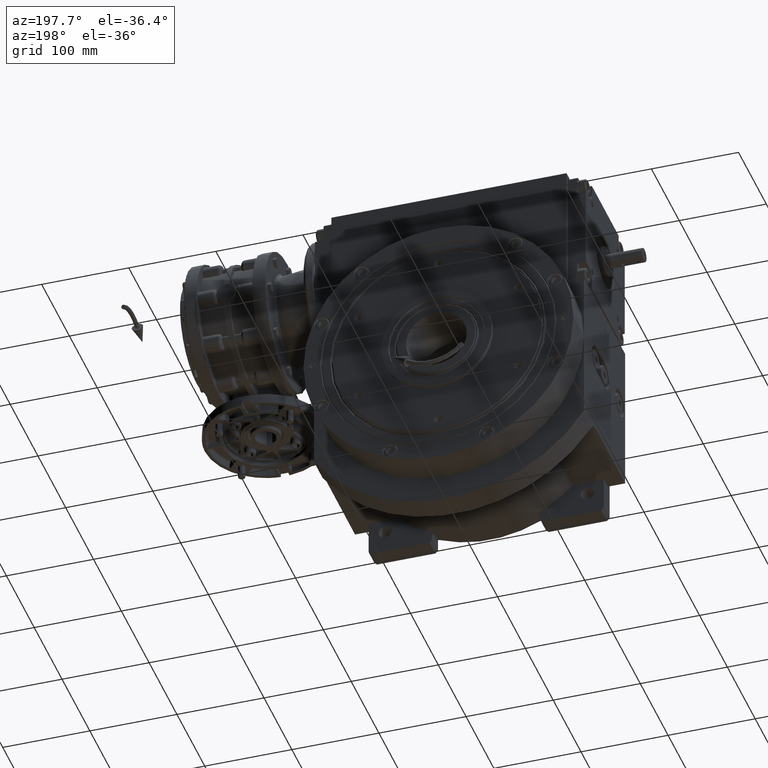
[diagram: clean part render]
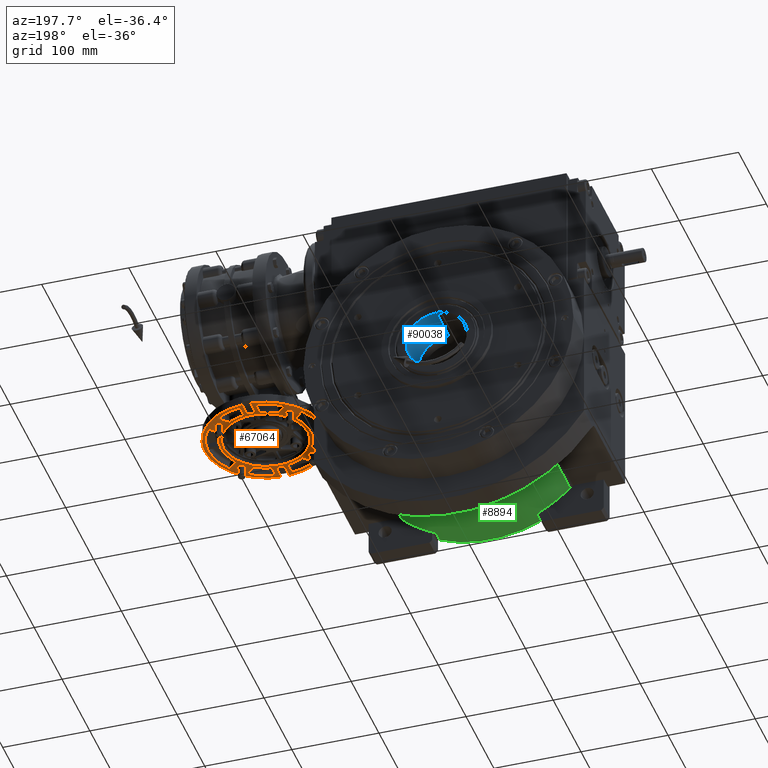
[diagram: same view with three faces highlighted in distinct colors, each labeled with its STEP entity id]
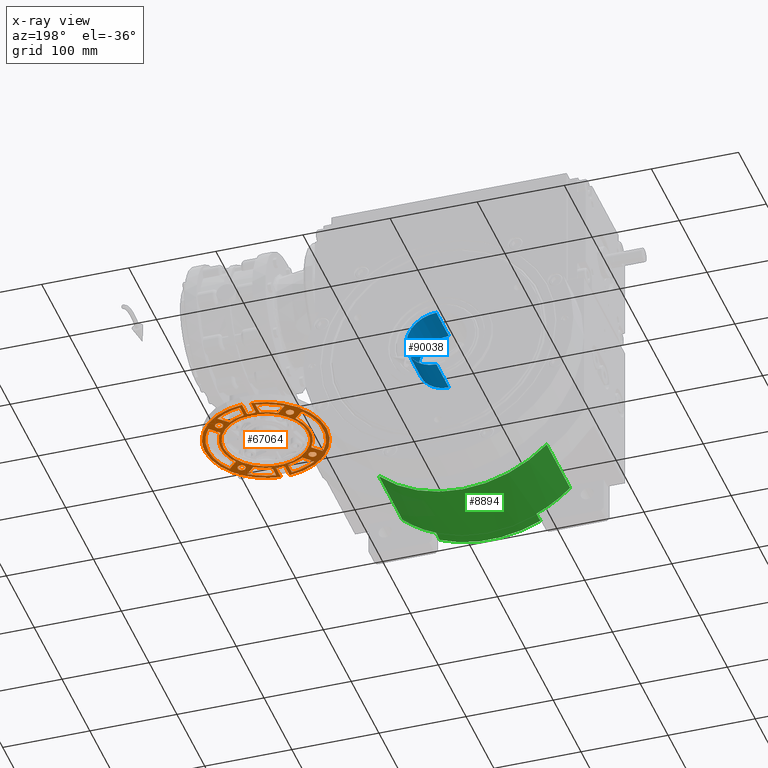
[diagram: x-ray of the same camera — body ghosted, the three highlighted faces saturated]
A machine part, auxiliary view with three faces highlighted in distinct colors.
The next image is the same camera in x-ray (body ghosted, the three faces saturated) — at least one of them is partly hidden behind the body in this view.
Their STEP definitions:

[orange] entity #67064 — the highlighted planar face has unit normal (0, 0, 1).
#191 = VERTEX_POINT ( 'NONE', #105442 ) ;
#914 = DIRECTION ( 'NONE',  ( -1.000000000000000000, -1.052995033665096970E-13, 0.000000000000000000 ) ) ;
#1061 = DIRECTION ( 'NONE',  ( 9.244463733058732095E-32, 2.041326947255042983E-63, -1.000000000000000000 ) ) ;
#1884 = VERTEX_POINT ( 'NONE', #2478 ) ;
#2401 = CARTESIAN_POINT ( 'NONE',  ( -45.15863991822649837, 110.6586399182286158, 100.0000000000000000 ) ) ;
#2478 = CARTESIAN_POINT ( 'NONE',  ( 36.15863991822648416, 110.6586399182286158, 100.0000000000000000 ) ) ;
#2789 = LINE ( 'NONE', #22522, #62763 ) ;
#2954 = VERTEX_POINT ( 'NONE', #74921 ) ;
#3019 = DIRECTION ( 'NONE',  ( -0.07142857142857053643, 0.9974457174120673342, 0.000000000000000000 ) ) ;
#3193 = VERTEX_POINT ( 'NONE', #95854 ) ;
#3231 = CARTESIAN_POINT ( 'NONE',  ( 28.01241613556598864, 113.2152119310790113, 100.0000000000000000 ) ) ;
#3818 = DIRECTION ( 'NONE',  ( 1.000000000000000000, 0.000000000000000000, 0.000000000000000000 ) ) ;
#4028 = CARTESIAN_POINT ( 'NONE',  ( -53.64723104256879793, 108.4444352470602126, 100.0000000000000000 ) ) ;
#5023 = EDGE_CURVE ( 'NONE', #2954, #1884, #45629, .T. ) ;
#5497 = ORIENTED_EDGE ( 'NONE', *, *, #68835, .T. ) ;
#6032 = DIRECTION ( 'NONE',  ( -9.244463733058732095E-32, -2.041326947255042983E-63, 1.000000000000000000 ) ) ;
#6237 = FACE_BOUND ( 'NONE', #110161, .T. ) ;
#6913 = FACE_BOUND ( 'NONE', #25148, .T. ) ;
#7011 = CARTESIAN_POINT ( 'NONE',  ( 15.80658970243451655, 1.772910809099280893, 99.99999999999998579 ) ) ;
#7067 = ORIENTED_EDGE ( 'NONE', *, *, #108440, .T. ) ;
#7251 = ORIENTED_EDGE ( 'NONE', *, *, #59120, .T. ) ;
#7378 = DIRECTION ( 'NONE',  ( 6.505213034912908275E-16, 1.000000000000000000, 0.000000000000000000 ) ) ;
#7449 = CIRCLE ( 'NONE', #83388, 66.00000000000000000 ) ;
#7673 = CARTESIAN_POINT ( 'NONE',  ( 26.22748536798228258, 5.062278186696220317, 100.0000000000000142 ) ) ;
#8328 = CARTESIAN_POINT ( 'NONE',  ( 69.99997257758867875, 67.81172977236685995, 99.99999999999997158 ) ) ;
#8494 = CARTESIAN_POINT ( 'NONE',  ( -3.000000000000002665, 16.50000000000027711, 100.0000000000000000 ) ) ;
#8615 = ORIENTED_EDGE ( 'NONE', *, *, #44771, .T. ) ;
#8653 = CIRCLE ( 'NONE', #99785, 66.00000000000005684 ) ;
#9116 = CIRCLE ( 'NONE', #59018, 4.499999999999997335 ) ;
#10080 = AXIS2_PLACEMENT_3D ( 'NONE', #26995, #68460, #109918 ) ;
#10314 = ORIENTED_EDGE ( 'NONE', *, *, #40353, .T. ) ;
#10344 = LINE ( 'NONE', #91918, #67835 ) ;
#10631 = CARTESIAN_POINT ( 'NONE',  ( 9.000000000000007105, 4.616515846889969410, 100.0000000000000000 ) ) ;
#11880 = AXIS2_PLACEMENT_3D ( 'NONE', #86249, #64497, #76040 ) ;
#12135 = CIRCLE ( 'NONE', #105489, 48.50000000000000000 ) ;
#12266 = VERTEX_POINT ( 'NONE', #30371 ) ;
#12284 = LINE ( 'NONE', #116939, #128303 ) ;
#12692 = AXIS2_PLACEMENT_3D ( 'NONE', #34957, #120556, #24760 ) ;
#12852 = CARTESIAN_POINT ( 'NONE',  ( 5.551115123125782702E-14, 70.00000000000112266, 100.0000000000000000 ) ) ;
#13173 = EDGE_CURVE ( 'NONE', #63279, #29102, #107914, .T. ) ;
#13193 = AXIS2_PLACEMENT_3D ( 'NONE', #99843, #17593, #7378 ) ;
#13369 = VECTOR ( 'NONE', #83052, 1000.000000000000000 ) ;
#14000 = CARTESIAN_POINT ( 'NONE',  ( -3.000000000000002665, 123.5000000000022169, 100.0000000000000000 ) ) ;
#15880 = CARTESIAN_POINT ( 'NONE',  ( -5.000000000000004441, 139.8212002188467977, 100.0000000000000000 ) ) ;
#15995 = VECTOR ( 'NONE', #76540, 1000.000000000000000 ) ;
#16137 = CARTESIAN_POINT ( 'NONE',  ( -28.01241613556604193, 113.2152119310790113, 100.0000000000000000 ) ) ;
#16179 = ORIENTED_EDGE ( 'NONE', *, *, #84592, .T. ) ;
#16226 = CIRCLE ( 'NONE', #66105, 2.000000000000029310 ) ;
#16527 = DIRECTION ( 'NONE',  ( -4.622231866529325541E-32, -1.000000000000000000, 2.051042633084080096E-63 ) ) ;
#16597 = VERTEX_POINT ( 'NONE', #46891 ) ;
#16836 = VERTEX_POINT ( 'NONE', #74600 ) ;
#16889 = DIRECTION ( 'NONE',  ( -0.5439304103993291006, -0.8391303287587795756, 0.000000000000000000 ) ) ;
#16963 = DIRECTION ( 'NONE',  ( -1.000000000000000000, -4.622231866529407648E-32, 9.244463733058732095E-32 ) ) ;
#17203 = CARTESIAN_POINT ( 'NONE',  ( 66.64521380935946127, 48.47794946528271964, 99.99999999999998579 ) ) ;
#17593 = DIRECTION ( 'NONE',  ( 9.244463733058732095E-32, 2.041326947255042983E-63, -1.000000000000000000 ) ) ;
#17831 = EDGE_LOOP ( 'NONE', ( #93092, #100205 ) ) ;
#17884 = CARTESIAN_POINT ( 'NONE',  ( 37.86732600190017450, 11.08604382290448598, 100.0000000000000426 ) ) ;
#18545 = CARTESIAN_POINT ( 'NONE',  ( 69.18188046712309358, 59.10715594143893270, 100.0000000000000000 ) ) ;
#19116 = FACE_BOUND ( 'NONE', #17831, .T. ) ;
#19153 = EDGE_CURVE ( 'NONE', #124308, #84635, #2789, .T. ) ;
#19378 = CARTESIAN_POINT ( 'NONE',  ( -38.44443524705800996, 16.35276895743142589, 100.0000000000000000 ) ) ;
#19815 = ORIENTED_EDGE ( 'NONE', *, *, #43062, .T. ) ;
#19895 = DIRECTION ( 'NONE',  ( 1.210383001907318260E-16, -1.000000000000000000, -1.026341648675384897E-47 ) ) ;
#20436 = FACE_BOUND ( 'NONE', #36637, .T. ) ;
#20800 = CARTESIAN_POINT ( 'NONE',  ( 43.21521193107680148, 98.01241613556821619, 100.0000000000000000 ) ) ;
#21138 = EDGE_CURVE ( 'NONE', #115710, #66622, #61018, .T. ) ;
#21462 = EDGE_CURVE ( 'NONE', #16836, #113274, #100662, .T. ) ;
#22522 = CARTESIAN_POINT ( 'NONE',  ( -5.000000000000004441, 0.1787997811552936578, 100.0000000000000000 ) ) ;
#22671 = ORIENTED_EDGE ( 'NONE', *, *, #47527, .T. ) ;
#23118 = CARTESIAN_POINT ( 'NONE',  ( 5.000000000000004441, 139.8212002188467977, 100.0000000000000000 ) ) ;
#23380 = CARTESIAN_POINT ( 'NONE',  ( 40.65863991822649126, 29.34136008177405586, 100.0000000000000000 ) ) ;
#23439 = CARTESIAN_POINT ( 'NONE',  ( 53.64723104256891162, 31.55556475294255137, 100.0000000000000000 ) ) ;
#23553 = CARTESIAN_POINT ( 'NONE',  ( -40.65863991822649126, 29.34136008177405586, 100.0000000000000000 ) ) ;
#24093 = DIRECTION ( 'NONE',  ( -9.244463733058732095E-32, -2.041326947255042983E-63, 1.000000000000000000 ) ) ;
#24760 = DIRECTION ( 'NONE',  ( -0.8391303287587686954, 0.5439304103993458650, 0.000000000000000000 ) ) ;
#25004 = DIRECTION ( 'NONE',  ( 9.244463733058732095E-32, 2.041326947255042983E-63, -1.000000000000000000 ) ) ;
#25148 = EDGE_LOOP ( 'NONE', ( #85933, #36938 ) ) ;
#25669 = DIRECTION ( 'NONE',  ( 1.000000000000000000, 0.000000000000000000, 0.000000000000000000 ) ) ;
#25685 = LINE ( 'NONE', #128340, #65903 ) ;
#25888 = DIRECTION ( 'NONE',  ( 9.244463733058732095E-32, 2.041326947255042983E-63, -1.000000000000000000 ) ) ;
#26006 = CIRCLE ( 'NONE', #60703, 51.50000000000090949 ) ;
#26499 = VERTEX_POINT ( 'NONE', #34715 ) ;
#26648 = ORIENTED_EDGE ( 'NONE', *, *, #53936, .F. ) ;
#26717 = DIRECTION ( 'NONE',  ( -0.7071067811865425767, -0.7071067811865525687, 6.162975822039117508E-32 ) ) ;
#26840 = EDGE_CURVE ( 'NONE', #40396, #69992, #7449, .T. ) ;
#26995 = CARTESIAN_POINT ( 'NONE',  ( 40.65863991822649126, 110.6586399182286158, 100.0000000000000000 ) ) ;
#27402 = CARTESIAN_POINT ( 'NONE',  ( 13.66914725751986026, 1.312714477467414653, 100.0000000000000000 ) ) ;
#27724 = CIRCLE ( 'NONE', #95132, 51.50000000000076028 ) ;
#27958 = VECTOR ( 'NONE', #129893, 1000.000000000000000 ) ;
#28373 = DIRECTION ( 'NONE',  ( 0.5439304103993309880, 0.8391303287587782433, 0.000000000000000000 ) ) ;
#28488 = EDGE_LOOP ( 'NONE', ( #62612, #91593 ) ) ;
#28637 = FACE_BOUND ( 'NONE', #51281, .T. ) ;
#28725 = CARTESIAN_POINT ( 'NONE',  ( 64.33901799604898031, 42.33640770039536250, 100.0000000000000000 ) ) ;
#28738 = CIRCLE ( 'NONE', #133000, 2.000000000000000000 ) ;
#29018 = DIRECTION ( 'NONE',  ( -9.244463733058732095E-32, -2.041326947255042983E-63, 1.000000000000000000 ) ) ;
#29102 = VERTEX_POINT ( 'NONE', #127580 ) ;
#29297 = DIRECTION ( 'NONE',  ( -1.000000000000000000, -4.622231866529407648E-32, 9.244463733058732095E-32 ) ) ;
#29551 = DIRECTION ( 'NONE',  ( 9.244463733058732095E-32, 2.041326947255042983E-63, -1.000000000000000000 ) ) ;
#30211 = DIRECTION ( 'NONE',  ( -0.7071067811865435759, 0.7071067811865514585, 7.703719777548895243E-32 ) ) ;
#30371 = CARTESIAN_POINT ( 'NONE',  ( -38.44443524705803839, 16.35276895743142589, 100.0000000000000000 ) ) ;
#30908 = VERTEX_POINT ( 'NONE', #20800 ) ;
#32034 = AXIS2_PLACEMENT_3D ( 'NONE', #12852, #127722, #33915 ) ;
#32972 = EDGE_LOOP ( 'NONE', ( #83462, #56575, #115361, #122014 ) ) ;
#32993 = CIRCLE ( 'NONE', #43893, 4.499999999999997335 ) ;
#33425 = CIRCLE ( 'NONE', #72409, 66.00000000000034106 ) ;
#33915 = DIRECTION ( 'NONE',  ( 0.5824914431372367751, -0.8128368339783201835, 0.000000000000000000 ) ) ;
#34094 = ORIENTED_EDGE ( 'NONE', *, *, #21462, .T. ) ;
#34345 = AXIS2_PLACEMENT_3D ( 'NONE', #37226, #107944, #106605 ) ;
#34715 = CARTESIAN_POINT ( 'NONE',  ( 3.000000000000002665, 18.50000000000027711, 100.0000000000000000 ) ) ;
#34827 = ORIENTED_EDGE ( 'NONE', *, *, #39373, .T. ) ;
#34957 = CARTESIAN_POINT ( 'NONE',  ( 5.551115123125782702E-14, 70.00000000000112266, 100.0000000000000000 ) ) ;
#35088 = LINE ( 'NONE', #56832, #15995 ) ;
#35213 = EDGE_CURVE ( 'NONE', #26499, #75407, #71783, .T. ) ;
#35261 = CIRCLE ( 'NONE', #63475, 48.50000000000000000 ) ;
#35590 = DIRECTION ( 'NONE',  ( -1.000000000000000000, 0.000000000000000000, 0.000000000000000000 ) ) ;
#36584 = CIRCLE ( 'NONE', #12692, 51.50000000000026290 ) ;
#36637 = EDGE_LOOP ( 'NONE', ( #7251, #58456, #100254, #97812 ) ) ;
#36762 = CARTESIAN_POINT ( 'NONE',  ( -9.000000000000007105, 120.7074945151132113, 100.0000000000000000 ) ) ;
#36932 = CARTESIAN_POINT ( 'NONE',  ( 65.94094715801604423, 46.40805977646705571, 99.99999999999998579 ) ) ;
#36938 = ORIENTED_EDGE ( 'NONE', *, *, #62253, .T. ) ;
#37226 = CARTESIAN_POINT ( 'NONE',  ( 40.65863991822649126, 29.34136008177405586, 100.0000000000000000 ) ) ;
#37878 = VERTEX_POINT ( 'NONE', #2401 ) ;
#38292 = CARTESIAN_POINT ( 'NONE',  ( -53.64723104256879793, 108.4444352470602126, 100.0000000000000000 ) ) ;
#38404 = VERTEX_POINT ( 'NONE', #131890 ) ;
#38500 = CARTESIAN_POINT ( 'NONE',  ( -3.885780586188047891E-13, 70.00000000000201794, 100.0000000000000000 ) ) ;
#38939 = CARTESIAN_POINT ( 'NONE',  ( 69.99997854670331776, 70.00000000062681238, 100.0000000000000000 ) ) ;
#38951 = EDGE_CURVE ( 'NONE', #84729, #62096, #97422, .T. ) ;
#39174 = LINE ( 'NONE', #80607, #97627 ) ;
#39373 = EDGE_CURVE ( 'NONE', #37878, #89209, #100432, .T. ) ;
#39729 = VERTEX_POINT ( 'NONE', #56985 ) ;
#39959 = CIRCLE ( 'NONE', #68191, 51.50000000000090239 ) ;
#40145 = CIRCLE ( 'NONE', #11880, 66.00000000000117950 ) ;
#40185 = CARTESIAN_POINT ( 'NONE',  ( 0.000000000000000000, 121.5000000000022169, 100.0000000000000000 ) ) ;
#40353 = EDGE_CURVE ( 'NONE', #64811, #52220, #35088, .T. ) ;
#40385 = ORIENTED_EDGE ( 'NONE', *, *, #117986, .T. ) ;
#40396 = VERTEX_POINT ( 'NONE', #98283 ) ;
#40436 = DIRECTION ( 'NONE',  ( 0.7071067811865425767, 0.7071067811865525687, -6.162975822039117508E-32 ) ) ;
#41084 = DIRECTION ( 'NONE',  ( 9.244463733058732095E-32, 2.041326947255042983E-63, -1.000000000000000000 ) ) ;
#41115 = CARTESIAN_POINT ( 'NONE',  ( -28.01241613556604193, 113.2152119310790113, 100.0000000000000000 ) ) ;
#41370 = VERTEX_POINT ( 'NONE', #129596 ) ;
#42117 = AXIS2_PLACEMENT_3D ( 'NONE', #84591, #60372, #61041 ) ;
#42820 = AXIS2_PLACEMENT_3D ( 'NONE', #108002, #6032, #16889 ) ;
#43062 = EDGE_CURVE ( 'NONE', #81699, #120339, #57260, .T. ) ;
#43258 = VERTEX_POINT ( 'NONE', #69279 ) ;
#43836 = CARTESIAN_POINT ( 'NONE',  ( 28.01241613556604193, 26.78478806892380604, 100.0000000000000000 ) ) ;
#43893 = AXIS2_PLACEMENT_3D ( 'NONE', #23553, #64995, #3818 ) ;
#43921 = EDGE_CURVE ( 'NONE', #115162, #117820, #48396, .T. ) ;
#44771 = EDGE_CURVE ( 'NONE', #89209, #37878, #129333, .T. ) ;
#45032 = ORIENTED_EDGE ( 'NONE', *, *, #13173, .T. ) ;
#45136 = CIRCLE ( 'NONE', #34345, 4.499999999999997335 ) ;
#45165 = DIRECTION ( 'NONE',  ( 0.1747572815533934565, -0.9846115439827363147, 0.000000000000000000 ) ) ;
#45629 = CIRCLE ( 'NONE', #62946, 4.499999999999997335 ) ;
#46849 = CIRCLE ( 'NONE', #98945, 2.000000000000000000 ) ;
#46891 = CARTESIAN_POINT ( 'NONE',  ( 66.00000000000000000, 70.00000000000112266, 100.0000000000000000 ) ) ;
#46931 = CARTESIAN_POINT ( 'NONE',  ( -9.000000000000007105, 4.616515846889969410, 100.0000000000000000 ) ) ;
#47527 = EDGE_CURVE ( 'NONE', #113274, #3193, #16226, .T. ) ;
#47709 = FACE_BOUND ( 'NONE', #32972, .T. ) ;
#48396 = LINE ( 'NONE', #130668, #120779 ) ;
#48476 = CARTESIAN_POINT ( 'NONE',  ( 5.000000000000004441, 0.1787997811552981542, 100.0000000000000000 ) ) ;
#48927 = DIRECTION ( 'NONE',  ( -9.244463733058732095E-32, -2.041326947255042983E-63, 1.000000000000000000 ) ) ;
#49135 = CARTESIAN_POINT ( 'NONE',  ( 28.24175784418757118, 5.912661368599073874, 100.0000000000000142 ) ) ;
#49137 = CARTESIAN_POINT ( 'NONE',  ( 5.000000000000004441, 139.8212002188467977, 100.0000000000000000 ) ) ;
#49205 = ORIENTED_EDGE ( 'NONE', *, *, #99956, .F. ) ;
#49669 = AXIS2_PLACEMENT_3D ( 'NONE', #40185, #101373, #29297 ) ;
#49803 = CARTESIAN_POINT ( 'NONE',  ( 39.68785912704193208, 12.29681257716787357, 100.0000000000000284 ) ) ;
#49996 = DIRECTION ( 'NONE',  ( 0.8391303287587690285, -0.5439304103993454209, 0.000000000000000000 ) ) ;
#50695 = VERTEX_POINT ( 'NONE', #16137 ) ;
#50928 = ORIENTED_EDGE ( 'NONE', *, *, #108904, .T. ) ;
#51017 = FACE_BOUND ( 'NONE', #62522, .T. ) ;
#51268 = LINE ( 'NONE', #41115, #103005 ) ;
#51281 = EDGE_LOOP ( 'NONE', ( #8615, #34827 ) ) ;
#51555 = CARTESIAN_POINT ( 'NONE',  ( -9.000000000000007105, 135.3834841531122208, 100.0000000000000000 ) ) ;
#52220 = VERTEX_POINT ( 'NONE', #132740 ) ;
#52404 = ORIENTED_EDGE ( 'NONE', *, *, #82593, .T. ) ;
#52886 = ORIENTED_EDGE ( 'NONE', *, *, #73896, .T. ) ;
#53198 = EDGE_CURVE ( 'NONE', #69047, #56344, #45136, .T. ) ;
#53670 = ORIENTED_EDGE ( 'NONE', *, *, #91166, .T. ) ;
#53709 = VERTEX_POINT ( 'NONE', #62631 ) ;
#53936 = EDGE_CURVE ( 'NONE', #118840, #75407, #97930, .T. ) ;
#54579 = EDGE_CURVE ( 'NONE', #38404, #40396, #83354, .T. ) ;
#55112 = AXIS2_PLACEMENT_3D ( 'NONE', #96146, #96814, #3019 ) ;
#55252 = ORIENTED_EDGE ( 'NONE', *, *, #108437, .T. ) ;
#55346 = CARTESIAN_POINT ( 'NONE',  ( 1.110223024625156540E-13, 70.00000000000112266, 100.0000000000000000 ) ) ;
#55807 = CARTESIAN_POINT ( 'NONE',  ( -36.15863991822648416, 29.34136008177405586, 100.0000000000000000 ) ) ;
#55839 = ORIENTED_EDGE ( 'NONE', *, *, #54579, .T. ) ;
#56150 = DIRECTION ( 'NONE',  ( 6.071532165918735689E-15, -1.000000000000000000, 0.000000000000000000 ) ) ;
#56344 = VERTEX_POINT ( 'NONE', #59473 ) ;
#56389 = AXIS2_PLACEMENT_3D ( 'NONE', #130876, #120647, #81160 ) ;
#56575 = ORIENTED_EDGE ( 'NONE', *, *, #66206, .T. ) ;
#56832 = CARTESIAN_POINT ( 'NONE',  ( 9.000000000000007105, 120.7074945151132113, 100.0000000000000000 ) ) ;
#56985 = CARTESIAN_POINT ( 'NONE',  ( -70.00000000000000000, 70.00000000000112266, 100.0000000000000000 ) ) ;
#57044 = AXIS2_PLACEMENT_3D ( 'NONE', #57149, #25888, #107464 ) ;
#57149 = CARTESIAN_POINT ( 'NONE',  ( -40.65863991822649126, 110.6586399182286158, 100.0000000000000000 ) ) ;
#57260 =( BOUNDED_CURVE ( )  B_SPLINE_CURVE ( 3, ( #73414, #114879, #116223, #23118 ),
 .UNSPECIFIED., .F., .F. ) 
 B_SPLINE_CURVE_WITH_KNOTS ( ( 4, 4 ),
 ( 0.6337260153285120268, 2.133039069713340119 ),
 .UNSPECIFIED. ) 
 CURVE ( )  GEOMETRIC_REPRESENTATION_ITEM ( )  RATIONAL_B_SPLINE_CURVE ( ( 1.000000000000000000, 0.8212819667252724276, 0.8212819667252724276, 1.000000000000000000 ) ) 
 REPRESENTATION_ITEM ( '' )  );
#57881 = DIRECTION ( 'NONE',  ( 9.244463733058732095E-32, 2.041326947255042983E-63, -1.000000000000000000 ) ) ;
#57979 = CARTESIAN_POINT ( 'NONE',  ( 53.64723104256879793, 108.4444352470602126, 100.0000000000000000 ) ) ;
#58279 = CARTESIAN_POINT ( 'NONE',  ( 40.65863991822649126, 110.6586399182286158, 100.0000000000000000 ) ) ;
#58456 = ORIENTED_EDGE ( 'NONE', *, *, #72875, .T. ) ;
#58502 = B_SPLINE_CURVE_WITH_KNOTS ( 'NONE', 3,
 ( #48476, #132095, #89925, #27402, #7011, #59328, #58662, #7673, #49135, #70849, #70194, #17884, #49803, #78388, #89254, #109651, #88575, #110320, #79051, #121854, #100801, #68862, #90584, #91244, #28725, #36932, #17203, #111640, #112302, #18545, #59988, #131424, #8328, #38939 ),
 .UNSPECIFIED., .F., .F.,
 ( 4, 2, 2, 2, 2, 2, 2, 2, 2, 2, 2, 2, 2, 2, 2, 2, 4 ),
 ( 0.000000000000000000, 0.06250000000000005551, 0.1250000000000001110, 0.1875000000000001665, 0.2500000000000002220, 0.3125000000000001665, 0.3750000000000001110, 0.4375000000000001110, 0.5000000000000001110, 0.5625000000000002220, 0.6250000000000004441, 0.6875000000000003331, 0.7500000000000003331, 0.8125000000000002220, 0.8750000000000002220, 0.9375000000000001110, 1.000000000000000000 ),
 .UNSPECIFIED. ) ;
#58662 = CARTESIAN_POINT ( 'NONE',  ( 22.12122478669861891, 3.551257660248213988, 99.99999999999998579 ) ) ;
#59018 = AXIS2_PLACEMENT_3D ( 'NONE', #68153, #120471, #69495 ) ;
#59120 = EDGE_CURVE ( 'NONE', #106906, #43258, #133441, .T. ) ;
#59328 = CARTESIAN_POINT ( 'NONE',  ( 20.03621979310777945, 2.893080284838749794, 99.99999999999998579 ) ) ;
#59473 = CARTESIAN_POINT ( 'NONE',  ( 36.15863991822648416, 29.34136008177405586, 100.0000000000000000 ) ) ;
#59988 = CARTESIAN_POINT ( 'NONE',  ( 69.48813813411928209, 61.27183410163918609, 100.0000000000000000 ) ) ;
#60351 = EDGE_CURVE ( 'NONE', #79143, #93141, #12135, .T. ) ;
#60366 = VECTOR ( 'NONE', #76070, 999.9999999999998863 ) ;
#60372 = DIRECTION ( 'NONE',  ( 9.244463733058732095E-32, 2.041326947255042983E-63, -1.000000000000000000 ) ) ;
#60703 = AXIS2_PLACEMENT_3D ( 'NONE', #87635, #129124, #65221 ) ;
#60818 = ORIENTED_EDGE ( 'NONE', *, *, #38951, .T. ) ;
#61018 = CIRCLE ( 'NONE', #115248, 51.50000000000024158 ) ;
#61041 = DIRECTION ( 'NONE',  ( 0.8128368339783108576, 0.5824914431372498758, 0.000000000000000000 ) ) ;
#62096 = VERTEX_POINT ( 'NONE', #3231 ) ;
#62253 = EDGE_CURVE ( 'NONE', #1884, #2954, #125050, .T. ) ;
#62483 = DIRECTION ( 'NONE',  ( -0.1363636363636333282, -0.9906588508046989539, 0.000000000000000000 ) ) ;
#62522 = EDGE_LOOP ( 'NONE', ( #7067, #45032, #52404, #40385 ) ) ;
#62612 = ORIENTED_EDGE ( 'NONE', *, *, #53198, .T. ) ;
#62631 = CARTESIAN_POINT ( 'NONE',  ( 53.64723104256891162, 31.55556475294255137, 100.0000000000000000 ) ) ;
#62763 = VECTOR ( 'NONE', #96571, 1000.000000000000000 ) ;
#62946 = AXIS2_PLACEMENT_3D ( 'NONE', #58279, #25004, #25669 ) ;
#63279 = VERTEX_POINT ( 'NONE', #89041 ) ;
#63338 = CARTESIAN_POINT ( 'NONE',  ( 5.000000000000004441, 0.1787997811552981542, 100.0000000000000000 ) ) ;
#63475 = AXIS2_PLACEMENT_3D ( 'NONE', #134206, #41084, #914 ) ;
#63601 = CARTESIAN_POINT ( 'NONE',  ( 43.21521193107680148, 41.98758386443460466, 100.0000000000000000 ) ) ;
#64056 = CARTESIAN_POINT ( 'NONE',  ( -3.000000000000002665, 121.5000000000022169, 100.0000000000000000 ) ) ;
#64346 = VERTEX_POINT ( 'NONE', #114315 ) ;
#64404 = ORIENTED_EDGE ( 'NONE', *, *, #79380, .T. ) ;
#64497 = DIRECTION ( 'NONE',  ( 9.244463733058732095E-32, 2.041326947255042983E-63, -1.000000000000000000 ) ) ;
#64666 = AXIS2_PLACEMENT_3D ( 'NONE', #23380, #127377, #35590 ) ;
#64811 = VERTEX_POINT ( 'NONE', #85593 ) ;
#64990 = CARTESIAN_POINT ( 'NONE',  ( -43.21521193107674463, 41.98758386443450519, 100.0000000000000000 ) ) ;
#64995 = DIRECTION ( 'NONE',  ( 9.244463733058732095E-32, 2.041326947255042983E-63, -1.000000000000000000 ) ) ;
#65221 = DIRECTION ( 'NONE',  ( -0.1747572815533949275, 0.9846115439827360927, 0.000000000000000000 ) ) ;
#65303 = EDGE_CURVE ( 'NONE', #130919, #38404, #36584, .T. ) ;
#65570 = ORIENTED_EDGE ( 'NONE', *, *, #19153, .T. ) ;
#65613 = EDGE_LOOP ( 'NONE', ( #5497, #67030, #34094, #22671, #49205, #16179, #68944, #65570, #55252, #134465, #82469, #26648, #53670, #19815 ) ) ;
#65735 = ORIENTED_EDGE ( 'NONE', *, *, #65303, .T. ) ;
#65903 = VECTOR ( 'NONE', #119471, 1000.000000000000000 ) ;
#66105 = AXIS2_PLACEMENT_3D ( 'NONE', #14000, #107127, #56150 ) ;
#66206 = EDGE_CURVE ( 'NONE', #117820, #50695, #26006, .T. ) ;
#66426 = CARTESIAN_POINT ( 'NONE',  ( -45.15863991822649837, 29.34136008177405586, 100.0000000000000000 ) ) ;
#66622 = VERTEX_POINT ( 'NONE', #77946 ) ;
#66918 = DIRECTION ( 'NONE',  ( -0.7071067811865435759, 0.7071067811865514585, 7.703719777548895243E-32 ) ) ;
#67030 = ORIENTED_EDGE ( 'NONE', *, *, #99133, .T. ) ;
#67058 = VECTOR ( 'NONE', #105799, 999.9999999999998863 ) ;
#67064 = ADVANCED_FACE ( 'NONE', ( #6237, #47709, #89155, #51017, #20436, #123744, #28637, #19116, #112203, #6913, #89825, #92476 ), #122421, .F. ) ;
#67175 = DIRECTION ( 'NONE',  ( -1.000000000000000000, -4.205390244792259832E-16, 0.000000000000000000 ) ) ;
#67835 = VECTOR ( 'NONE', #19895, 1000.000000000000000 ) ;
#67962 = ORIENTED_EDGE ( 'NONE', *, *, #72864, .T. ) ;
#68153 = CARTESIAN_POINT ( 'NONE',  ( -40.65863991822649126, 29.34136008177405586, 100.0000000000000000 ) ) ;
#68191 = AXIS2_PLACEMENT_3D ( 'NONE', #55346, #24093, #45165 ) ;
#68460 = DIRECTION ( 'NONE',  ( 9.244463733058732095E-32, 2.041326947255042983E-63, -1.000000000000000000 ) ) ;
#68551 = ORIENTED_EDGE ( 'NONE', *, *, #21138, .T. ) ;
#68835 = EDGE_CURVE ( 'NONE', #120339, #191, #79720, .T. ) ;
#68862 = CARTESIAN_POINT ( 'NONE',  ( 60.39068224682299046, 34.53517107906895234, 100.0000000000000142 ) ) ;
#68923 = CARTESIAN_POINT ( 'NONE',  ( 38.44443524705798154, 123.6472310425712209, 100.0000000000000000 ) ) ;
#68944 = ORIENTED_EDGE ( 'NONE', *, *, #94948, .T. ) ;
#69047 = VERTEX_POINT ( 'NONE', #104812 ) ;
#69279 = CARTESIAN_POINT ( 'NONE',  ( 9.000000000000007105, 19.29250548488937511, 100.0000000000000000 ) ) ;
#69495 = DIRECTION ( 'NONE',  ( -1.000000000000000000, 0.000000000000000000, 0.000000000000000000 ) ) ;
#69992 = VERTEX_POINT ( 'NONE', #38292 ) ;
#70008 = DIRECTION ( 'NONE',  ( -1.000000000000000000, 0.000000000000000000, 0.000000000000000000 ) ) ;
#70194 = CARTESIAN_POINT ( 'NONE',  ( 34.11446937510944366, 8.836392994345549923, 100.0000000000000142 ) ) ;
#70699 = VECTOR ( 'NONE', #40436, 999.9999999999998863 ) ;
#70789 = CARTESIAN_POINT ( 'NONE',  ( 48.50000000000093081, 70.00000000000112266, 100.0000000000000000 ) ) ;
#70849 = CARTESIAN_POINT ( 'NONE',  ( 32.18861816146402788, 7.801274359711350748, 100.0000000000000284 ) ) ;
#71008 = DIRECTION ( 'NONE',  ( -1.000000000000000000, 5.204170427930421283E-15, 0.000000000000000000 ) ) ;
#71783 = CIRCLE ( 'NONE', #13193, 2.000000000000036415 ) ;
#72368 = DIRECTION ( 'NONE',  ( 0.8128368339783108576, 0.5824914431372498758, 0.000000000000000000 ) ) ;
#72409 = AXIS2_PLACEMENT_3D ( 'NONE', #124705, #102342, #72368 ) ;
#72666 = CARTESIAN_POINT ( 'NONE',  ( -5.551115123125782702E-14, 70.00000000000112266, 100.0000000000000000 ) ) ;
#72864 = EDGE_CURVE ( 'NONE', #16597, #53709, #33425, .T. ) ;
#72875 = EDGE_CURVE ( 'NONE', #43258, #130651, #39959, .T. ) ;
#73414 = CARTESIAN_POINT ( 'NONE',  ( 69.99997854670331776, 70.00000000062681238, 100.0000000000000000 ) ) ;
#73896 = EDGE_CURVE ( 'NONE', #53709, #115710, #116536, .T. ) ;
#74600 = CARTESIAN_POINT ( 'NONE',  ( 3.000000000000002665, 121.5000000000022169, 100.0000000000000000 ) ) ;
#74776 = ORIENTED_EDGE ( 'NONE', *, *, #128873, .T. ) ;
#74921 = CARTESIAN_POINT ( 'NONE',  ( 45.15863991822649837, 110.6586399182286158, 100.0000000000000000 ) ) ;
#75043 = VERTEX_POINT ( 'NONE', #15880 ) ;
#75235 = CARTESIAN_POINT ( 'NONE',  ( 5.000000000000004441, 139.8212002188467977, 100.0000000000000000 ) ) ;
#75407 = VERTEX_POINT ( 'NONE', #87773 ) ;
#75908 = EDGE_CURVE ( 'NONE', #69992, #130919, #117522, .T. ) ;
#76024 = VECTOR ( 'NONE', #16963, 1000.000000000000000 ) ;
#76040 = DIRECTION ( 'NONE',  ( 0.1363636363636333559, 0.9906588508046989539, 0.000000000000000000 ) ) ;
#76070 = DIRECTION ( 'NONE',  ( 0.7071067811865425767, -0.7071067811865525687, -6.162975822039117508E-32 ) ) ;
#76439 = VECTOR ( 'NONE', #26717, 999.9999999999998863 ) ;
#76540 = DIRECTION ( 'NONE',  ( 4.622231866529325541E-32, 1.000000000000000000, -2.051042633084080096E-63 ) ) ;
#76866 = CARTESIAN_POINT ( 'NONE',  ( 69.99997854670331776, 70.00000000062681238, 100.0000000000000000 ) ) ;
#76967 = DIRECTION ( 'NONE',  ( -4.622231866529325541E-32, -1.000000000000000000, 2.051042633084080096E-63 ) ) ;
#77425 = EDGE_CURVE ( 'NONE', #130651, #64346, #39174, .T. ) ;
#77488 = EDGE_CURVE ( 'NONE', #41370, #115162, #8653, .T. ) ;
#77946 = CARTESIAN_POINT ( 'NONE',  ( 51.49999999999994316, 70.00000000000112266, 100.0000000000000000 ) ) ;
#78388 = CARTESIAN_POINT ( 'NONE',  ( 43.21375016603678887, 14.88774948138415155, 100.0000000000000142 ) ) ;
#79051 = CARTESIAN_POINT ( 'NONE',  ( 54.13864625542248632, 25.57263514890855305, 100.0000000000000000 ) ) ;
#79143 = VERTEX_POINT ( 'NONE', #70789 ) ;
#79380 = EDGE_CURVE ( 'NONE', #30908, #117382, #12284, .T. ) ;
#79720 = LINE ( 'NONE', #49137, #95536 ) ;
#79954 = DIRECTION ( 'NONE',  ( 9.244463733058732095E-32, 2.041326947255042983E-63, -1.000000000000000000 ) ) ;
#80216 = EDGE_CURVE ( 'NONE', #126631, #81491, #9116, .T. ) ;
#80607 = CARTESIAN_POINT ( 'NONE',  ( 28.01241613556604193, 26.78478806892380604, 100.0000000000000000 ) ) ;
#81160 = DIRECTION ( 'NONE',  ( 0.8391303287587690285, -0.5439304103993454209, 0.000000000000000000 ) ) ;
#81491 = VERTEX_POINT ( 'NONE', #55807 ) ;
#81602 = DIRECTION ( 'NONE',  ( 1.000000000000000000, 1.050133634117093897E-13, 0.000000000000000000 ) ) ;
#81699 = VERTEX_POINT ( 'NONE', #76866 ) ;
#81962 = CARTESIAN_POINT ( 'NONE',  ( 3.000000000000002665, 123.5000000000022169, 100.0000000000000000 ) ) ;
#82469 = ORIENTED_EDGE ( 'NONE', *, *, #35213, .T. ) ;
#82593 = EDGE_CURVE ( 'NONE', #29102, #111485, #10344, .T. ) ;
#82673 = AXIS2_PLACEMENT_3D ( 'NONE', #82825, #48927, #70008 ) ;
#82825 = CARTESIAN_POINT ( 'NONE',  ( 0.000000000000000000, 70.00000000000112266, 100.0000000000000000 ) ) ;
#82901 = ORIENTED_EDGE ( 'NONE', *, *, #75908, .T. ) ;
#83052 = DIRECTION ( 'NONE',  ( -2.420766003814637013E-16, 1.000000000000000000, 2.052683297350769793E-47 ) ) ;
#83354 = LINE ( 'NONE', #64990, #67058 ) ;
#83388 = AXIS2_PLACEMENT_3D ( 'NONE', #107280, #117465, #67175 ) ;
#83462 = ORIENTED_EDGE ( 'NONE', *, *, #43921, .T. ) ;
#84232 = VECTOR ( 'NONE', #66918, 1000.000000000000000 ) ;
#84521 = EDGE_CURVE ( 'NONE', #117382, #16597, #133344, .T. ) ;
#84592 = EDGE_CURVE ( 'NONE', #75043, #39729, #96324, .T. ) ;
#84591 = CARTESIAN_POINT ( 'NONE',  ( 0.000000000000000000, 70.00000000000112266, 100.0000000000000000 ) ) ;
#84635 = VERTEX_POINT ( 'NONE', #116533 ) ;
#84729 = VERTEX_POINT ( 'NONE', #68923 ) ;
#84812 = EDGE_LOOP ( 'NONE', ( #52886, #68551, #100100, #64404, #86907, #67962 ) ) ;
#84989 = VECTOR ( 'NONE', #90449, 1000.000000000000000 ) ;
#85593 = CARTESIAN_POINT ( 'NONE',  ( 9.000000000000007105, 120.7074945151132113, 100.0000000000000000 ) ) ;
#85933 = ORIENTED_EDGE ( 'NONE', *, *, #5023, .T. ) ;
#86249 = CARTESIAN_POINT ( 'NONE',  ( 5.551115123125782702E-14, 70.00000000000112266, 100.0000000000000000 ) ) ;
#86907 = ORIENTED_EDGE ( 'NONE', *, *, #84521, .T. ) ;
#87067 = CARTESIAN_POINT ( 'NONE',  ( 5.000000000000004441, 0.1787997811553076744, 100.0000000000000000 ) ) ;
#87232 = CARTESIAN_POINT ( 'NONE',  ( 38.44443524705803839, 123.6472310425712209, 100.0000000000000000 ) ) ;
#87635 = CARTESIAN_POINT ( 'NONE',  ( 0.000000000000000000, 70.00000000000112266, 100.0000000000000000 ) ) ;
#87773 = CARTESIAN_POINT ( 'NONE',  ( 5.000000000000004441, 16.50000000000027711, 100.0000000000000000 ) ) ;
#88144 = ORIENTED_EDGE ( 'NONE', *, *, #26840, .T. ) ;
#88575 = CARTESIAN_POINT ( 'NONE',  ( 49.74407239866998509, 20.70181564649153216, 100.0000000000000142 ) ) ;
#89041 = CARTESIAN_POINT ( 'NONE',  ( -28.01241613556598864, 26.78478806892375630, 100.0000000000000000 ) ) ;
#89155 = FACE_BOUND ( 'NONE', #128550, .T. ) ;
#89209 = VERTEX_POINT ( 'NONE', #109284 ) ;
#89254 = CARTESIAN_POINT ( 'NONE',  ( 44.91301733694486842, 16.26356387689235561, 100.0000000000000000 ) ) ;
#89825 = FACE_BOUND ( 'NONE', #129926, .T. ) ;
#89925 = CARTESIAN_POINT ( 'NONE',  ( 9.353260928914977512, 0.5932250808530261654, 100.0000000000000142 ) ) ;
#89984 = CARTESIAN_POINT ( 'NONE',  ( -43.21521193107680148, 98.01241613556821619, 100.0000000000000000 ) ) ;
#90449 = DIRECTION ( 'NONE',  ( -1.000000000000000000, -4.622231866529407648E-32, 9.244463733058732095E-32 ) ) ;
#90584 = CARTESIAN_POINT ( 'NONE',  ( 61.46827630550199473, 36.43759898047269985, 100.0000000000000000 ) ) ;
#91108 = EDGE_CURVE ( 'NONE', #56344, #69047, #125703, .T. ) ;
#91166 = EDGE_CURVE ( 'NONE', #118840, #81699, #58502, .T. ) ;
#91229 = EDGE_CURVE ( 'NONE', #64346, #106906, #101558, .T. ) ;
#91244 = CARTESIAN_POINT ( 'NONE',  ( 63.44416164195321528, 40.34149664138094238, 100.0000000000000142 ) ) ;
#91593 = ORIENTED_EDGE ( 'NONE', *, *, #91108, .T. ) ;
#91918 = CARTESIAN_POINT ( 'NONE',  ( -9.000000000000007105, 19.29250548488937511, 100.0000000000000000 ) ) ;
#92476 = FACE_OUTER_BOUND ( 'NONE', #65613, .T. ) ;
#93092 = ORIENTED_EDGE ( 'NONE', *, *, #98352, .T. ) ;
#93141 = VERTEX_POINT ( 'NONE', #114556 ) ;
#93667 = DIRECTION ( 'NONE',  ( 9.244463733058732095E-32, 2.041326947255042983E-63, -1.000000000000000000 ) ) ;
#94948 = EDGE_CURVE ( 'NONE', #39729, #124308, #123921, .T. ) ;
#95132 = AXIS2_PLACEMENT_3D ( 'NONE', #122154, #29018, #28373 ) ;
#95536 = VECTOR ( 'NONE', #16527, 1000.000000000000000 ) ;
#95854 = CARTESIAN_POINT ( 'NONE',  ( -5.000000000000004441, 123.5000000000022169, 100.0000000000000000 ) ) ;
#96146 = CARTESIAN_POINT ( 'NONE',  ( 5.551115123125782702E-14, 70.00000000000112266, 100.0000000000000000 ) ) ;
#96324 = CIRCLE ( 'NONE', #55112, 70.00000000000123634 ) ;
#96536 = DIRECTION ( 'NONE',  ( 0.7071067811865425767, 0.7071067811865525687, -6.162975822039117508E-32 ) ) ;
#96571 = DIRECTION ( 'NONE',  ( 4.622231866529325541E-32, 1.000000000000000000, -2.051042633084080096E-63 ) ) ;
#96641 = EDGE_CURVE ( 'NONE', #93141, #79143, #35261, .T. ) ;
#96814 = DIRECTION ( 'NONE',  ( -9.244463733058732095E-32, -2.041326947255042983E-63, 1.000000000000000000 ) ) ;
#97422 = LINE ( 'NONE', #87232, #76439 ) ;
#97627 = VECTOR ( 'NONE', #133644, 1000.000000000000000 ) ;
#97703 = CARTESIAN_POINT ( 'NONE',  ( -5.000000000000004441, 0.1787997811552936578, 100.0000000000000000 ) ) ;
#97812 = ORIENTED_EDGE ( 'NONE', *, *, #91229, .T. ) ;
#97930 = LINE ( 'NONE', #87067, #27958 ) ;
#98283 = CARTESIAN_POINT ( 'NONE',  ( -53.64723104256879793, 31.55556475294245189, 100.0000000000000000 ) ) ;
#98352 = EDGE_CURVE ( 'NONE', #81491, #126631, #32993, .T. ) ;
#98939 = AXIS2_PLACEMENT_3D ( 'NONE', #103893, #93667, #124266 ) ;
#98945 = AXIS2_PLACEMENT_3D ( 'NONE', #8494, #29551, #71008 ) ;
#99133 = EDGE_CURVE ( 'NONE', #191, #16836, #28738, .T. ) ;
#99785 = AXIS2_PLACEMENT_3D ( 'NONE', #38500, #79954, #121419 ) ;
#99843 = CARTESIAN_POINT ( 'NONE',  ( 3.000000000000002665, 16.50000000000027711, 100.0000000000000000 ) ) ;
#99891 = ORIENTED_EDGE ( 'NONE', *, *, #96641, .T. ) ;
#99897 = CARTESIAN_POINT ( 'NONE',  ( 3.000000000000002665, 18.50000000000027711, 100.0000000000000000 ) ) ;
#99956 = EDGE_CURVE ( 'NONE', #75043, #3193, #25685, .T. ) ;
#100100 = ORIENTED_EDGE ( 'NONE', *, *, #115891, .T. ) ;
#100205 = ORIENTED_EDGE ( 'NONE', *, *, #80216, .T. ) ;
#100254 = ORIENTED_EDGE ( 'NONE', *, *, #77425, .T. ) ;
#100432 = CIRCLE ( 'NONE', #57044, 4.499999999999997335 ) ;
#100662 = LINE ( 'NONE', #102660, #84989 ) ;
#100801 = CARTESIAN_POINT ( 'NONE',  ( 58.05817832069899964, 30.83328293701306677, 100.0000000000000000 ) ) ;
#101373 = DIRECTION ( 'NONE',  ( -9.244463733058732095E-32, -6.504684023928853076E-63, -1.000000000000000000 ) ) ;
#101558 = CIRCLE ( 'NONE', #32034, 66.00000000000093792 ) ;
#102342 = DIRECTION ( 'NONE',  ( 9.244463733058732095E-32, 2.041326947255042983E-63, -1.000000000000000000 ) ) ;
#102660 = CARTESIAN_POINT ( 'NONE',  ( 3.000000000000002665, 121.5000000000022169, 100.0000000000000000 ) ) ;
#103005 = VECTOR ( 'NONE', #30211, 1000.000000000000000 ) ;
#103893 = CARTESIAN_POINT ( 'NONE',  ( -40.65863991822649126, 110.6586399182286158, 100.0000000000000000 ) ) ;
#104812 = CARTESIAN_POINT ( 'NONE',  ( 45.15863991822649837, 29.34136008177405586, 100.0000000000000000 ) ) ;
#105442 = CARTESIAN_POINT ( 'NONE',  ( 5.000000000000004441, 123.5000000000022169, 100.0000000000000000 ) ) ;
#105489 = AXIS2_PLACEMENT_3D ( 'NONE', #132647, #57881, #81602 ) ;
#105799 = DIRECTION ( 'NONE',  ( -0.7071067811865425767, -0.7071067811865525687, 6.162975822039117508E-32 ) ) ;
#106605 = DIRECTION ( 'NONE',  ( 1.000000000000000000, 0.000000000000000000, 0.000000000000000000 ) ) ;
#106906 = VERTEX_POINT ( 'NONE', #10631 ) ;
#107127 = DIRECTION ( 'NONE',  ( 9.244463733058732095E-32, 2.041326947255042983E-63, -1.000000000000000000 ) ) ;
#107280 = CARTESIAN_POINT ( 'NONE',  ( -5.551115123125782702E-14, 70.00000000000112266, 100.0000000000000000 ) ) ;
#107464 = DIRECTION ( 'NONE',  ( -1.000000000000000000, 0.000000000000000000, 0.000000000000000000 ) ) ;
#107914 = CIRCLE ( 'NONE', #42820, 51.50000000000074607 ) ;
#107944 = DIRECTION ( 'NONE',  ( 9.244463733058732095E-32, 2.041326947255042983E-63, -1.000000000000000000 ) ) ;
#108002 = CARTESIAN_POINT ( 'NONE',  ( 1.665334536937734811E-13, 70.00000000000112266, 100.0000000000000000 ) ) ;
#108248 = CARTESIAN_POINT ( 'NONE',  ( -3.000000000000002665, 18.50000000000027711, 100.0000000000000000 ) ) ;
#108399 = EDGE_CURVE ( 'NONE', #50695, #41370, #51268, .T. ) ;
#108437 = EDGE_CURVE ( 'NONE', #84635, #114720, #46849, .T. ) ;
#108440 = EDGE_CURVE ( 'NONE', #12266, #63279, #112470, .T. ) ;
#108904 = EDGE_CURVE ( 'NONE', #52220, #84729, #40145, .T. ) ;
#109284 = CARTESIAN_POINT ( 'NONE',  ( -36.15863991822648416, 110.6586399182286158, 100.0000000000000000 ) ) ;
#109411 = LINE ( 'NONE', #99897, #76024 ) ;
#109651 = CARTESIAN_POINT ( 'NONE',  ( 48.18098352051993771, 19.17302539954409113, 100.0000000000000284 ) ) ;
#109918 = DIRECTION ( 'NONE',  ( -1.000000000000000000, 0.000000000000000000, 0.000000000000000000 ) ) ;
#110161 = EDGE_LOOP ( 'NONE', ( #60818, #74776, #10314, #50928 ) ) ;
#110320 = CARTESIAN_POINT ( 'NONE',  ( 52.72546360842383706, 23.90429466406608228, 100.0000000000000000 ) ) ;
#111485 = VERTEX_POINT ( 'NONE', #46931 ) ;
#111640 = CARTESIAN_POINT ( 'NONE',  ( 67.85913052429270920, 52.68162887658392179, 100.0000000000000142 ) ) ;
#112203 = FACE_BOUND ( 'NONE', #28488, .T. ) ;
#112302 = CARTESIAN_POINT ( 'NONE',  ( 68.36662782131031690, 54.80833476050068498, 100.0000000000000000 ) ) ;
#112470 = LINE ( 'NONE', #19378, #70699 ) ;
#113229 = AXIS2_PLACEMENT_3D ( 'NONE', #72666, #114142, #62483 ) ;
#113274 = VERTEX_POINT ( 'NONE', #64056 ) ;
#114142 = DIRECTION ( 'NONE',  ( 9.244463733058732095E-32, 2.041326947255042983E-63, -1.000000000000000000 ) ) ;
#114315 = CARTESIAN_POINT ( 'NONE',  ( 38.44443524705809523, 16.35276895743147918, 100.0000000000000000 ) ) ;
#114556 = CARTESIAN_POINT ( 'NONE',  ( -48.50000000000090239, 70.00000000000112266, 100.0000000000000000 ) ) ;
#114720 = VERTEX_POINT ( 'NONE', #108248 ) ;
#114879 = CARTESIAN_POINT ( 'NONE',  ( 70.00005198902529457, 108.7173835096302668, 100.0000000000000000 ) ) ;
#114972 = CIRCLE ( 'NONE', #56389, 51.50000000000024158 ) ;
#115162 = VERTEX_POINT ( 'NONE', #51555 ) ;
#115248 = AXIS2_PLACEMENT_3D ( 'NONE', #125361, #122704, #49996 ) ;
#115361 = ORIENTED_EDGE ( 'NONE', *, *, #108399, .T. ) ;
#115710 = VERTEX_POINT ( 'NONE', #63601 ) ;
#115891 = EDGE_CURVE ( 'NONE', #66622, #30908, #114972, .T. ) ;
#116223 = CARTESIAN_POINT ( 'NONE',  ( 43.61854500621584663, 137.0556818639284415, 100.0000000000000000 ) ) ;
#116533 = CARTESIAN_POINT ( 'NONE',  ( -5.000000000000004441, 16.50000000000027711, 100.0000000000000000 ) ) ;
#116536 = LINE ( 'NONE', #23439, #84232 ) ;
#116939 = CARTESIAN_POINT ( 'NONE',  ( 43.21521193107674463, 98.01241613556821619, 100.0000000000000000 ) ) ;
#117382 = VERTEX_POINT ( 'NONE', #57979 ) ;
#117465 = DIRECTION ( 'NONE',  ( 9.244463733058732095E-32, 2.041326947255042983E-63, -1.000000000000000000 ) ) ;
#117522 = LINE ( 'NONE', #4028, #60366 ) ;
#117820 = VERTEX_POINT ( 'NONE', #36762 ) ;
#117986 = EDGE_CURVE ( 'NONE', #111485, #12266, #130646, .T. ) ;
#118223 = ORIENTED_EDGE ( 'NONE', *, *, #60351, .T. ) ;
#118840 = VERTEX_POINT ( 'NONE', #63338 ) ;
#119471 = DIRECTION ( 'NONE',  ( -4.622231866529325541E-32, -1.000000000000000000, 2.051042633084080096E-63 ) ) ;
#120339 = VERTEX_POINT ( 'NONE', #75235 ) ;
#120471 = DIRECTION ( 'NONE',  ( 9.244463733058732095E-32, 2.041326947255042983E-63, -1.000000000000000000 ) ) ;
#120556 = DIRECTION ( 'NONE',  ( -9.244463733058732095E-32, -2.041326947255042983E-63, 1.000000000000000000 ) ) ;
#120647 = DIRECTION ( 'NONE',  ( -9.244463733058732095E-32, -2.041326947255042983E-63, 1.000000000000000000 ) ) ;
#120779 = VECTOR ( 'NONE', #76967, 1000.000000000000000 ) ;
#121419 = DIRECTION ( 'NONE',  ( -0.5824914431372385515, 0.8128368339783188512, 0.000000000000000000 ) ) ;
#121854 = CARTESIAN_POINT ( 'NONE',  ( 56.80730200407591468, 29.04003121905907747, 99.99999999999998579 ) ) ;
#122014 = ORIENTED_EDGE ( 'NONE', *, *, #77488, .T. ) ;
#122154 = CARTESIAN_POINT ( 'NONE',  ( -5.551115123125782702E-14, 70.00000000000112266, 100.0000000000000000 ) ) ;
#122421 = PLANE ( 'NONE',  #49669 ) ;
#122704 = DIRECTION ( 'NONE',  ( -9.244463733058732095E-32, -2.041326947255042983E-63, 1.000000000000000000 ) ) ;
#123203 = CARTESIAN_POINT ( 'NONE',  ( 9.000000000000007105, 4.616515846889969410, 100.0000000000000000 ) ) ;
#123450 = DIRECTION ( 'NONE',  ( 1.000000000000000000, 0.000000000000000000, 0.000000000000000000 ) ) ;
#123744 = FACE_BOUND ( 'NONE', #84812, .T. ) ;
#123921 = CIRCLE ( 'NONE', #82673, 70.00000000000000000 ) ;
#124266 = DIRECTION ( 'NONE',  ( 1.000000000000000000, 0.000000000000000000, 0.000000000000000000 ) ) ;
#124308 = VERTEX_POINT ( 'NONE', #97703 ) ;
#124705 = CARTESIAN_POINT ( 'NONE',  ( 0.000000000000000000, 70.00000000000112266, 100.0000000000000000 ) ) ;
#125050 = CIRCLE ( 'NONE', #10080, 4.499999999999997335 ) ;
#125361 = CARTESIAN_POINT ( 'NONE',  ( -5.551115123125782702E-14, 70.00000000000112266, 100.0000000000000000 ) ) ;
#125703 = CIRCLE ( 'NONE', #64666, 4.499999999999997335 ) ;
#126631 = VERTEX_POINT ( 'NONE', #66426 ) ;
#127377 = DIRECTION ( 'NONE',  ( 9.244463733058732095E-32, 2.041326947255042983E-63, -1.000000000000000000 ) ) ;
#127580 = CARTESIAN_POINT ( 'NONE',  ( -9.000000000000007105, 19.29250548488937511, 100.0000000000000000 ) ) ;
#127722 = DIRECTION ( 'NONE',  ( 9.244463733058732095E-32, 2.041326947255042983E-63, -1.000000000000000000 ) ) ;
#128303 = VECTOR ( 'NONE', #96536, 999.9999999999998863 ) ;
#128340 = CARTESIAN_POINT ( 'NONE',  ( -5.000000000000004441, 139.8212002188467977, 100.0000000000000000 ) ) ;
#128550 = EDGE_LOOP ( 'NONE', ( #88144, #82901, #65735, #55839 ) ) ;
#128873 = EDGE_CURVE ( 'NONE', #62096, #64811, #27724, .T. ) ;
#129124 = DIRECTION ( 'NONE',  ( -9.244463733058732095E-32, -2.041326947255042983E-63, 1.000000000000000000 ) ) ;
#129333 = CIRCLE ( 'NONE', #98939, 4.499999999999997335 ) ;
#129596 = CARTESIAN_POINT ( 'NONE',  ( -38.44443524705809523, 123.6472310425710077, 100.0000000000000000 ) ) ;
#129893 = DIRECTION ( 'NONE',  ( 4.622231866529325541E-32, 1.000000000000000000, -2.051042633084080096E-63 ) ) ;
#129926 = EDGE_LOOP ( 'NONE', ( #99891, #118223 ) ) ;
#130646 = CIRCLE ( 'NONE', #113229, 66.00000000000119371 ) ;
#130651 = VERTEX_POINT ( 'NONE', #43836 ) ;
#130668 = CARTESIAN_POINT ( 'NONE',  ( -9.000000000000007105, 135.3834841531122208, 100.0000000000000000 ) ) ;
#130876 = CARTESIAN_POINT ( 'NONE',  ( -5.551115123125782702E-14, 70.00000000000112266, 100.0000000000000000 ) ) ;
#130919 = VERTEX_POINT ( 'NONE', #89984 ) ;
#131424 = CARTESIAN_POINT ( 'NONE',  ( 69.89760759190833994, 65.62844254692625157, 100.0000000000000142 ) ) ;
#131890 = CARTESIAN_POINT ( 'NONE',  ( -43.21521193107680148, 41.98758386443450519, 100.0000000000000000 ) ) ;
#132095 = CARTESIAN_POINT ( 'NONE',  ( 7.182317434838696002, 0.3350780379240093088, 100.0000000000000284 ) ) ;
#132647 = CARTESIAN_POINT ( 'NONE',  ( 0.000000000000000000, 69.99999999999600675, 100.0000000000000000 ) ) ;
#132740 = CARTESIAN_POINT ( 'NONE',  ( 9.000000000000007105, 135.3834841531122208, 100.0000000000000000 ) ) ;
#132920 = EDGE_CURVE ( 'NONE', #26499, #114720, #109411, .T. ) ;
#133000 = AXIS2_PLACEMENT_3D ( 'NONE', #81962, #1061, #123450 ) ;
#133344 = CIRCLE ( 'NONE', #42117, 66.00000000000034106 ) ;
#133441 = LINE ( 'NONE', #123203, #13369 ) ;
#133644 = DIRECTION ( 'NONE',  ( 0.7071067811865435759, -0.7071067811865514585, -7.703719777548895243E-32 ) ) ;
#134206 = CARTESIAN_POINT ( 'NONE',  ( 0.000000000000000000, 70.00000000000621014, 100.0000000000000000 ) ) ;
#134465 = ORIENTED_EDGE ( 'NONE', *, *, #132920, .F. ) ;

[blue] entity #90038 — the highlighted cylindrical surface (edge-blend (fillet) strip) has radius 35 mm, axis along (0, -1, 0).
#2111 = CARTESIAN_POINT ( 'NONE',  ( 0.000000000000000000, 3.520743267239335012E-15, 11.99999999999999645 ) ) ;
#3767 = CARTESIAN_POINT ( 'NONE',  ( -35.00000000000000000, 3.520743267239335012E-15, 11.99999999999999645 ) ) ;
#5227 = CARTESIAN_POINT ( 'NONE',  ( 0.000000000000000000, 0.000000000000000000, 11.99999999999999645 ) ) ;
#5478 = EDGE_CURVE ( 'NONE', #13326, #106180, #86705, .T. ) ;
#7098 = LINE ( 'NONE', #59421, #82915 ) ;
#13326 = VERTEX_POINT ( 'NONE', #133123 ) ;
#17302 = DIRECTION ( 'NONE',  ( 0.000000000000000000, 0.000000000000000000, -1.000000000000000000 ) ) ;
#22595 = EDGE_CURVE ( 'NONE', #94406, #106180, #41824, .T. ) ;
#24560 = EDGE_CURVE ( 'NONE', #107551, #94406, #7098, .T. ) ;
#24563 = ORIENTED_EDGE ( 'NONE', *, *, #35426, .F. ) ;
#28128 = DIRECTION ( 'NONE',  ( 0.000000000000000000, 0.000000000000000000, -1.000000000000000000 ) ) ;
#29336 = CARTESIAN_POINT ( 'NONE',  ( -35.00000000000000000, 1.173581089079778600E-15, -33.00000000000000000 ) ) ;
#32833 = CARTESIAN_POINT ( 'NONE',  ( 35.00000000000000000, 2.602335688085024756E-15, -33.00000000000000000 ) ) ;
#35426 = EDGE_CURVE ( 'NONE', #107551, #13326, #128192, .T. ) ;
#35710 = DIRECTION ( 'NONE',  ( 0.000000000000000000, 0.000000000000000000, -1.000000000000000000 ) ) ;
#38753 = CARTESIAN_POINT ( 'NONE',  ( 35.00000000000000000, 2.602335688085024756E-15, 11.99999999999999645 ) ) ;
#38984 = DIRECTION ( 'NONE',  ( 1.000000000000000000, 0.000000000000000000, 0.000000000000000000 ) ) ;
#41824 = CIRCLE ( 'NONE', #132971, 35.00000000000000000 ) ;
#43603 = DIRECTION ( 'NONE',  ( -1.000000000000000000, 0.000000000000000000, 0.000000000000000000 ) ) ;
#47852 = CARTESIAN_POINT ( 'NONE',  ( 0.000000000000000000, 0.000000000000000000, -33.00000000000000000 ) ) ;
#53097 = CYLINDRICAL_SURFACE ( 'NONE', #99514, 35.00000000000000000 ) ;
#53771 = FACE_OUTER_BOUND ( 'NONE', #131323, .T. ) ;
#59421 = CARTESIAN_POINT ( 'NONE',  ( 35.00000000000000000, 7.807007064255067958E-15, 11.99999999999999645 ) ) ;
#65317 = DIRECTION ( 'NONE',  ( 0.000000000000000000, 0.000000000000000000, 1.000000000000000000 ) ) ;
#73257 = ORIENTED_EDGE ( 'NONE', *, *, #24560, .T. ) ;
#82915 = VECTOR ( 'NONE', #17302, 1000.000000000000000 ) ;
#86705 = LINE ( 'NONE', #3767, #113010 ) ;
#86941 = AXIS2_PLACEMENT_3D ( 'NONE', #5227, #122085, #109874 ) ;
#90038 = ADVANCED_FACE ( 'NONE', ( #53771 ), #53097, .F. ) ;
#94406 = VERTEX_POINT ( 'NONE', #32833 ) ;
#99514 = AXIS2_PLACEMENT_3D ( 'NONE', #2111, #65317, #43603 ) ;
#106180 = VERTEX_POINT ( 'NONE', #29336 ) ;
#107551 = VERTEX_POINT ( 'NONE', #38753 ) ;
#109874 = DIRECTION ( 'NONE',  ( 1.000000000000000000, 0.000000000000000000, 0.000000000000000000 ) ) ;
#113010 = VECTOR ( 'NONE', #35710, 1000.000000000000000 ) ;
#119783 = ORIENTED_EDGE ( 'NONE', *, *, #22595, .T. ) ;
#122085 = DIRECTION ( 'NONE',  ( 0.000000000000000000, 0.000000000000000000, -1.000000000000000000 ) ) ;
#125808 = ORIENTED_EDGE ( 'NONE', *, *, #5478, .F. ) ;
#128192 = CIRCLE ( 'NONE', #86941, 35.00000000000000000 ) ;
#131323 = EDGE_LOOP ( 'NONE', ( #73257, #119783, #125808, #24563 ) ) ;
#132971 = AXIS2_PLACEMENT_3D ( 'NONE', #47852, #28128, #38984 ) ;
#133123 = CARTESIAN_POINT ( 'NONE',  ( -35.00000000000000000, 1.173581089079778600E-15, 11.99999999999999645 ) ) ;

[green] entity #8894 — the highlighted cylindrical surface (partial cylindrical patch) has radius 138 mm, axis along (0, 1, 0).
#439 = ORIENTED_EDGE ( 'NONE', *, *, #96023, .F. ) ;
#635 = DIRECTION ( 'NONE',  ( -0.6978784504689377055, -1.201735973212917754E-14, -0.7162162162162165613 ) ) ;
#2200 = DIRECTION ( 'NONE',  ( 0.000000000000000000, 1.000000000000000000, 0.000000000000000000 ) ) ;
#2545 = DIRECTION ( 'NONE',  ( 0.000000000000000000, -1.000000000000000000, 0.000000000000000000 ) ) ;
#3554 = EDGE_CURVE ( 'NONE', #19259, #32356, #123600, .T. ) ;
#5920 = EDGE_CURVE ( 'NONE', #121463, #19259, #113115, .T. ) ;
#7638 = CARTESIAN_POINT ( 'NONE',  ( 96.30722616471339848, -59.00000000000000000, -98.83783783783789545 ) ) ;
#7958 = DIRECTION ( 'NONE',  ( -0.4184397163120575636, 0.000000000000000000, -0.9082445726855100654 ) ) ;
#8894 = ADVANCED_FACE ( 'NONE', ( #114369 ), #53195, .T. ) ;
#10108 = EDGE_CURVE ( 'NONE', #125081, #18212, #28840, .T. ) ;
#15412 = AXIS2_PLACEMENT_3D ( 'NONE', #88536, #69499, #17841 ) ;
#15462 = CIRCLE ( 'NONE', #28475, 138.0000000000000000 ) ;
#16330 = CARTESIAN_POINT ( 'NONE',  ( -96.30722616471359743, -59.00000000000000000, -98.83783783783779597 ) ) ;
#16422 = LINE ( 'NONE', #58563, #18519 ) ;
#17841 = DIRECTION ( 'NONE',  ( -0.4184397163120575636, 0.000000000000000000, -0.9082445726855100654 ) ) ;
#18212 = VERTEX_POINT ( 'NONE', #81326 ) ;
#18519 = VECTOR ( 'NONE', #110215, 1000.000000000000000 ) ;
#19259 = VERTEX_POINT ( 'NONE', #16330 ) ;
#20113 = CARTESIAN_POINT ( 'NONE',  ( -57.74468085106390447, -73.00000000000000000, -125.3377510306004012 ) ) ;
#22945 = CARTESIAN_POINT ( 'NONE',  ( -57.74468085106390447, -59.00000000000000000, -125.3377510306004012 ) ) ;
#23472 = VERTEX_POINT ( 'NONE', #70421 ) ;
#23640 = VERTEX_POINT ( 'NONE', #20113 ) ;
#26367 = DIRECTION ( 'NONE',  ( 0.6978784504689377055, 0.000000000000000000, -0.7162162162162165613 ) ) ;
#28475 = AXIS2_PLACEMENT_3D ( 'NONE', #38563, #69832, #7958 ) ;
#28840 = LINE ( 'NONE', #48589, #96758 ) ;
#29883 = CIRCLE ( 'NONE', #84202, 138.0000000000000853 ) ;
#32356 = VERTEX_POINT ( 'NONE', #80828 ) ;
#36345 = EDGE_CURVE ( 'NONE', #121463, #23640, #106545, .T. ) ;
#38563 = CARTESIAN_POINT ( 'NONE',  ( 0.000000000000000000, -73.00000000000000000, -1.705302565824239941E-13 ) ) ;
#39250 = CARTESIAN_POINT ( 'NONE',  ( 1.421085471520199867E-13, -59.00000000000000000, -2.700062395888380201E-13 ) ) ;
#42654 = EDGE_CURVE ( 'NONE', #116412, #23472, #16422, .T. ) ;
#45854 = EDGE_CURVE ( 'NONE', #116412, #18212, #29883, .T. ) ;
#46525 = ORIENTED_EDGE ( 'NONE', *, *, #5920, .T. ) ;
#48589 = CARTESIAN_POINT ( 'NONE',  ( 57.74468085106380499, -73.00000000000000000, -125.3377510306004012 ) ) ;
#48882 = CARTESIAN_POINT ( 'NONE',  ( -96.30722616471349795, -59.00000000000000000, -98.83783783783779597 ) ) ;
#52376 = VECTOR ( 'NONE', #2545, 1000.000000000000000 ) ;
#53195 = CYLINDRICAL_SURFACE ( 'NONE', #131256, 138.0000000000000000 ) ;
#58563 = CARTESIAN_POINT ( 'NONE',  ( 96.30722616471349795, -59.00000000000000000, -98.83783783783789545 ) ) ;
#59431 = CARTESIAN_POINT ( 'NONE',  ( 57.74468085106380499, -73.00000000000000000, -125.3377510306004012 ) ) ;
#65263 = CIRCLE ( 'NONE', #84748, 138.0000000000000853 ) ;
#69466 = EDGE_CURVE ( 'NONE', #32356, #23472, #65263, .T. ) ;
#69499 = DIRECTION ( 'NONE',  ( 0.000000000000000000, 1.000000000000000000, 0.000000000000000000 ) ) ;
#69832 = DIRECTION ( 'NONE',  ( 0.000000000000000000, -1.000000000000000000, 0.000000000000000000 ) ) ;
#70421 = CARTESIAN_POINT ( 'NONE',  ( 96.30723760260589472, 24.99999990761120117, -98.83797943607669367 ) ) ;
#75929 = EDGE_LOOP ( 'NONE', ( #95188, #106713, #439, #97312, #46525, #94404, #123297, #123077 ) ) ;
#76051 = DIRECTION ( 'NONE',  ( -6.789570679155330615E-15, -1.000000000000000000, 2.340198913247644897E-14 ) ) ;
#80828 = CARTESIAN_POINT ( 'NONE',  ( -96.30722393658518854, 24.99999992571344976, -98.83796549704690904 ) ) ;
#81326 = CARTESIAN_POINT ( 'NONE',  ( 57.74468085106380499, -59.00000000000000000, -125.3377510306004012 ) ) ;
#84202 = AXIS2_PLACEMENT_3D ( 'NONE', #39250, #89559, #26367 ) ;
#84748 = AXIS2_PLACEMENT_3D ( 'NONE', #84906, #76051, #635 ) ;
#84802 = DIRECTION ( 'NONE',  ( 0.000000000000000000, 1.000000000000000000, 0.000000000000000000 ) ) ;
#84906 = CARTESIAN_POINT ( 'NONE',  ( -1.421085471520200056E-14, 25.00000000000330047, 8.526512829121199706E-14 ) ) ;
#88536 = CARTESIAN_POINT ( 'NONE',  ( 5.542233338928780440E-13, -59.00000000000000000, 9.237055564881300397E-13 ) ) ;
#89559 = DIRECTION ( 'NONE',  ( 0.000000000000000000, 1.000000000000000000, 0.000000000000000000 ) ) ;
#93984 = CARTESIAN_POINT ( 'NONE',  ( -2.057655180072804513E-28, -73.00000000000000000, 0.000000000000000000 ) ) ;
#94404 = ORIENTED_EDGE ( 'NONE', *, *, #3554, .T. ) ;
#95188 = ORIENTED_EDGE ( 'NONE', *, *, #45854, .T. ) ;
#96023 = EDGE_CURVE ( 'NONE', #23640, #125081, #15462, .T. ) ;
#96758 = VECTOR ( 'NONE', #100925, 1000.000000000000000 ) ;
#97312 = ORIENTED_EDGE ( 'NONE', *, *, #36345, .F. ) ;
#100925 = DIRECTION ( 'NONE',  ( 0.000000000000000000, 1.000000000000000000, 0.000000000000000000 ) ) ;
#106545 = LINE ( 'NONE', #22945, #52376 ) ;
#106713 = ORIENTED_EDGE ( 'NONE', *, *, #10108, .F. ) ;
#108731 = CARTESIAN_POINT ( 'NONE',  ( -57.74468085106390447, -59.00000000000000000, -125.3377510306004012 ) ) ;
#110215 = DIRECTION ( 'NONE',  ( 0.000000000000000000, 1.000000000000000000, 0.000000000000000000 ) ) ;
#113115 = CIRCLE ( 'NONE', #15412, 138.0000000000000000 ) ;
#114369 = FACE_OUTER_BOUND ( 'NONE', #75929, .T. ) ;
#116412 = VERTEX_POINT ( 'NONE', #7638 ) ;
#121463 = VERTEX_POINT ( 'NONE', #108731 ) ;
#123077 = ORIENTED_EDGE ( 'NONE', *, *, #42654, .F. ) ;
#123297 = ORIENTED_EDGE ( 'NONE', *, *, #69466, .T. ) ;
#123600 = LINE ( 'NONE', #48882, #132594 ) ;
#125081 = VERTEX_POINT ( 'NONE', #59431 ) ;
#125933 = DIRECTION ( 'NONE',  ( 0.000000000000000000, 0.000000000000000000, 1.000000000000000000 ) ) ;
#131256 = AXIS2_PLACEMENT_3D ( 'NONE', #93984, #2200, #125933 ) ;
#132594 = VECTOR ( 'NONE', #84802, 1000.000000000000000 ) ;